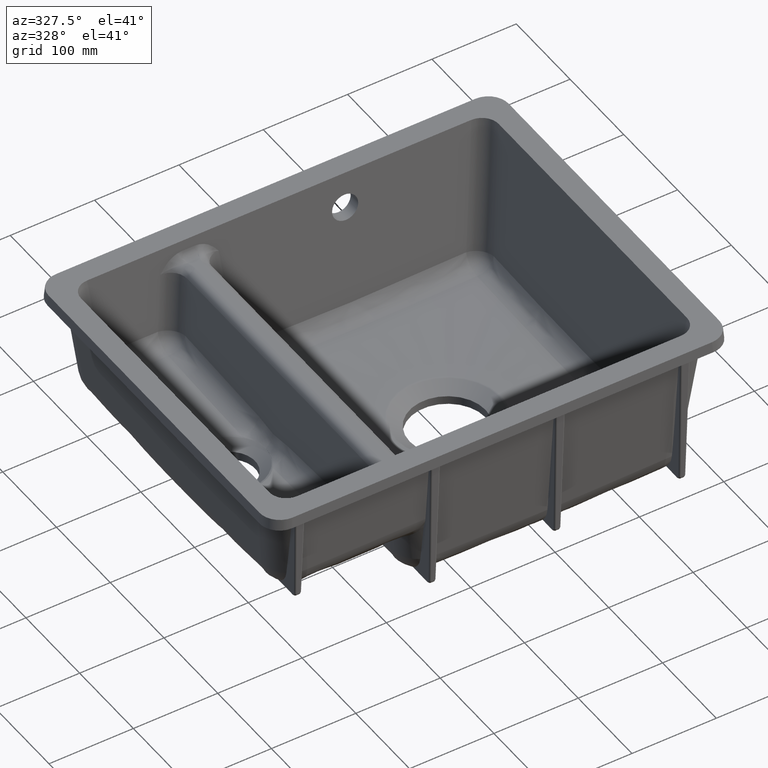
[diagram: clean part render]
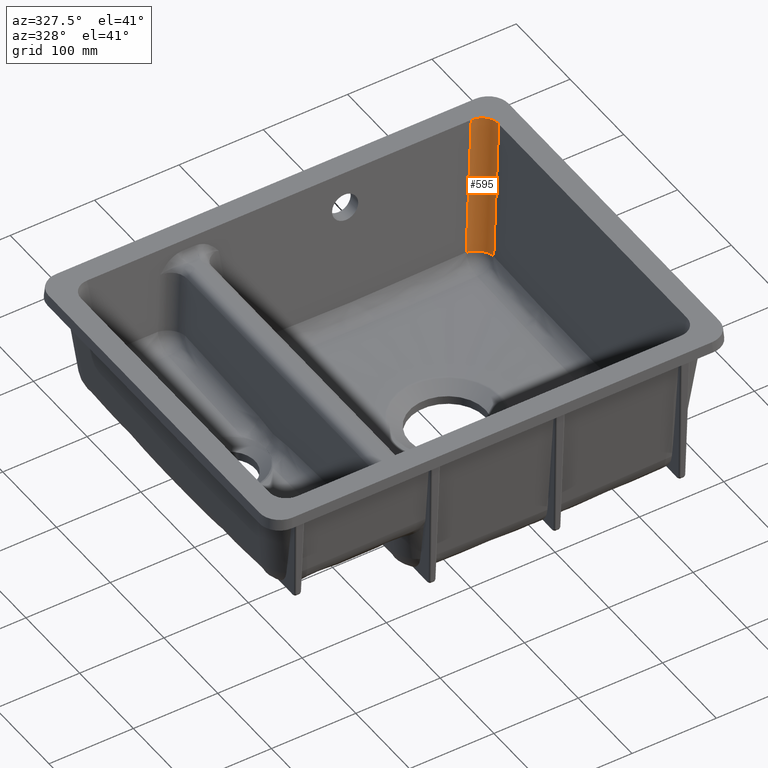
[diagram: same view with one face highlighted and labeled with its STEP entity id]
A machine part, auxiliary view. The second image highlights one B-rep face of the part: STEP entity #595.
In plain terms, the highlighted cylindrical surface (edge-blend (fillet) strip) has radius 20 mm, axis along (0.104, 0.104, 0.9891).
Its self-contained STEP definition (entity closure, byte-faithful):
#169=CYLINDRICAL_SURFACE('',#3101,20.);
#302=FACE_OUTER_BOUND('',#867,.T.);
#417=CIRCLE('',#3041,20.);
#595=ADVANCED_FACE('',(#302),#169,.F.);
#867=EDGE_LOOP('',(#1716,#1717,#1718,#1719));
#1113=ELLIPSE('',#3028,20.2197309630101,20.);
#1716=ORIENTED_EDGE('',*,*,#2480,.F.);
#1717=ORIENTED_EDGE('',*,*,#2615,.F.);
#1718=ORIENTED_EDGE('',*,*,#2496,.F.);
#1719=ORIENTED_EDGE('',*,*,#2616,.F.);
#2148=VERTEX_POINT('',#6274);
#2150=VERTEX_POINT('',#6277);
#2164=VERTEX_POINT('',#6539);
#2165=VERTEX_POINT('',#6541);
#2480=EDGE_CURVE('',#2148,#2150,#1113,.T.);
#2496=EDGE_CURVE('',#2164,#2165,#417,.T.);
#2615=EDGE_CURVE('',#2165,#2148,#2753,.T.);
#2616=EDGE_CURVE('',#2150,#2164,#2754,.T.);
#2753=LINE('',#8522,#2854);
#2754=LINE('',#8523,#2855);
#2854=VECTOR('',#3636,1.);
#2855=VECTOR('',#3637,1.);
#3028=AXIS2_PLACEMENT_3D('',#6276,#3477,#3478);
#3041=AXIS2_PLACEMENT_3D('',#6540,#3503,#3504);
#3101=AXIS2_PLACEMENT_3D('',#8524,#3638,#3639);
#3477=DIRECTION('',(-7.41762602073262E-13,-6.24094096036757E-13,-1.));
#3478=DIRECTION('',(0.707106781186155,0.70710678118694,-9.65806533362615E-13));
#3503=DIRECTION('',(0.103962051184499,0.103962051184498,0.989132844377854));
#3504=DIRECTION('',(0.994521895368274,0.,-0.104528463267654));
#3636=DIRECTION('',(0.103962051184499,0.103962051184498,0.989132844377854));
#3637=DIRECTION('',(-0.103962051184499,-0.103962051184498,-0.989132844377854));
#3638=DIRECTION('',(0.103962051184499,0.103962051184498,0.989132844377854));
#3639=DIRECTION('',(-0.994521895368274,0.,0.104528463267655));
#6274=CARTESIAN_POINT('',(152.265708519408,195.105104235249,-1.71051237402602E-10));
#6276=CARTESIAN_POINT('',(152.045980996574,174.994938643962,-3.27888324130887E-10));
#6277=CARTESIAN_POINT('',(172.156146587868,175.214662728453,-1.0322827509916E-10));
#6539=CARTESIAN_POINT('',(155.79398343103,158.852503171052,-155.675583533722));
#6540=CARTESIAN_POINT('',(135.90354217766,158.852499825048,-153.585046103471));
#6541=CARTESIAN_POINT('',(135.903675927121,178.743071481874,-155.674342827709));
#8522=CARTESIAN_POINT('',(152.403772068365,195.243167623118,1.31358538980114));
#8523=CARTESIAN_POINT('',(172.294209975731,175.352729715753,1.31358538980111));
#8524=CARTESIAN_POINT('',(152.403772068365,175.352729715753,3.4041546551542));